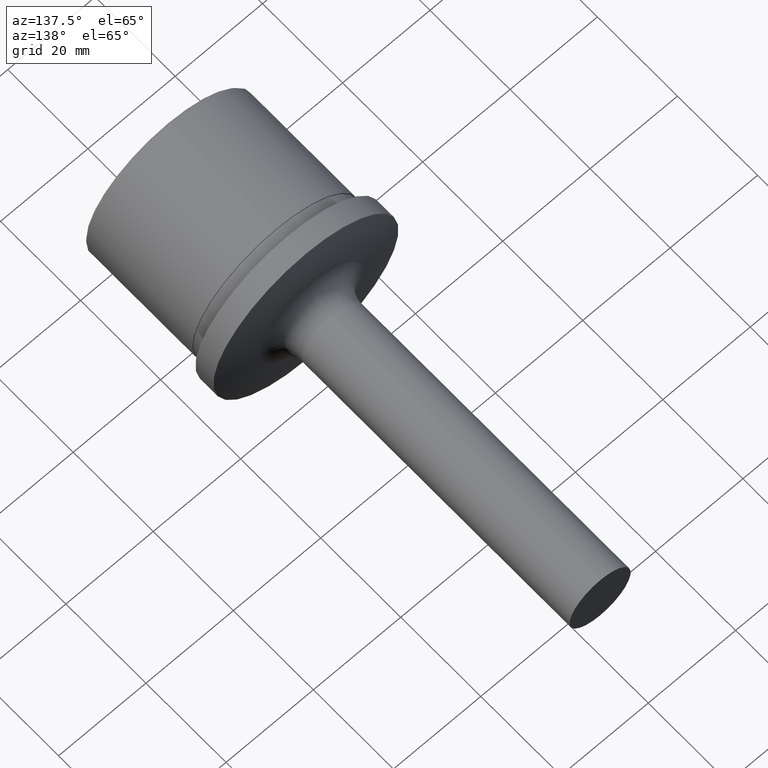
[diagram: clean part render]
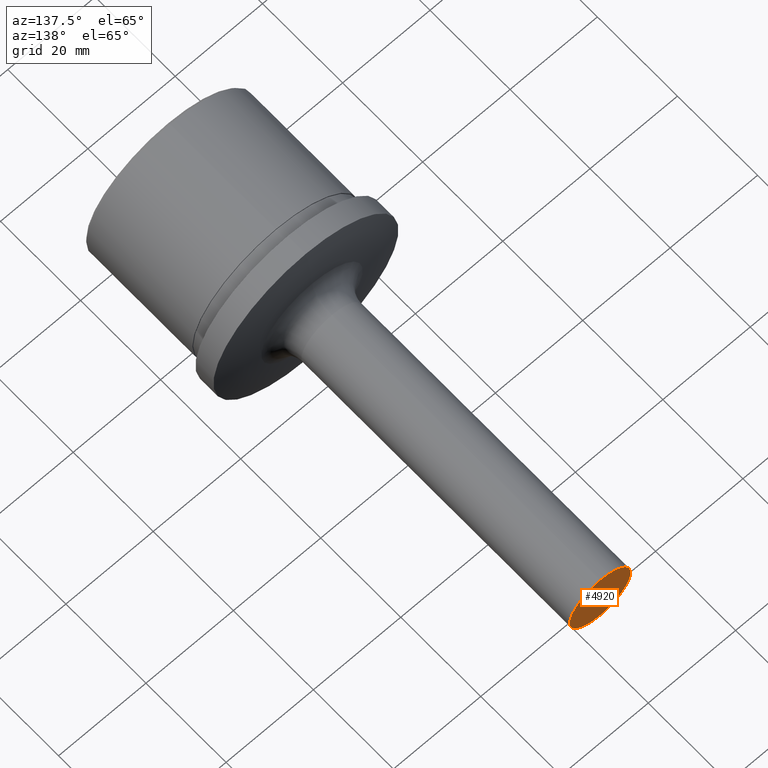
[diagram: same view with one face highlighted and labeled with its STEP entity id]
A machine part, auxiliary view. The second image highlights one B-rep face of the part: STEP entity #4920.
In plain terms, the highlighted planar face has unit normal (0, 1, 0).
Its self-contained STEP definition (entity closure, byte-faithful):
#314 = DIRECTION ( 'NONE',  ( 0.0000000000000000000, 0.0000000000000000000, -1.000000000000000000 ) ) ;
#700 = DIRECTION ( 'NONE',  ( 0.0000000000000000000, 0.0000000000000000000, -1.000000000000000000 ) ) ;
#1439 = AXIS2_PLACEMENT_3D ( 'NONE', #6841, #17524, #18994 ) ;
#1525 = VERTEX_POINT ( 'NONE', #11651 ) ;
#3168 = CIRCLE ( 'NONE', #5143, 7.000000000000000000 ) ;
#3796 = ORIENTED_EDGE ( 'NONE', *, *, #4761, .F. ) ;
#4023 = AXIS2_PLACEMENT_3D ( 'NONE', #15331, #9269, #314 ) ;
#4312 = EDGE_LOOP ( 'NONE', ( #3796, #13388 ) ) ;
#4761 = EDGE_CURVE ( 'NONE', #8825, #1525, #3168, .T. ) ;
#4917 = CARTESIAN_POINT ( 'NONE',  ( 0.0000000000000000000, 107.9999999999999900, -7.000000000000000000 ) ) ;
#4920 = ADVANCED_FACE ( 'NONE', ( #9889 ), #17648, .T. ) ;
#5143 = AXIS2_PLACEMENT_3D ( 'NONE', #19187, #19058, #700 ) ;
#6448 = CIRCLE ( 'NONE', #4023, 7.000000000000000000 ) ;
#6841 = CARTESIAN_POINT ( 'NONE',  ( 0.0000000000000000000, 107.9999999999999900, 0.0000000000000000000 ) ) ;
#8825 = VERTEX_POINT ( 'NONE', #4917 ) ;
#9269 = DIRECTION ( 'NONE',  ( -0.0000000000000000000, -1.000000000000000000, -0.0000000000000000000 ) ) ;
#9889 = FACE_OUTER_BOUND ( 'NONE', #4312, .T. ) ;
#9995 = EDGE_CURVE ( 'NONE', #1525, #8825, #6448, .T. ) ;
#11651 = CARTESIAN_POINT ( 'NONE',  ( 8.572527594031474200E-016, 107.9999999999999900, 7.000000000000000000 ) ) ;
#13388 = ORIENTED_EDGE ( 'NONE', *, *, #9995, .F. ) ;
#15331 = CARTESIAN_POINT ( 'NONE',  ( 0.0000000000000000000, 107.9999999999999900, 0.0000000000000000000 ) ) ;
#17524 = DIRECTION ( 'NONE',  ( 0.0000000000000000000, 1.000000000000000000, 0.0000000000000000000 ) ) ;
#17648 = PLANE ( 'NONE',  #1439 ) ;
#18994 = DIRECTION ( 'NONE',  ( 0.0000000000000000000, -0.0000000000000000000, 1.000000000000000000 ) ) ;
#19058 = DIRECTION ( 'NONE',  ( -0.0000000000000000000, -1.000000000000000000, -0.0000000000000000000 ) ) ;
#19187 = CARTESIAN_POINT ( 'NONE',  ( 0.0000000000000000000, 107.9999999999999900, 0.0000000000000000000 ) ) ;